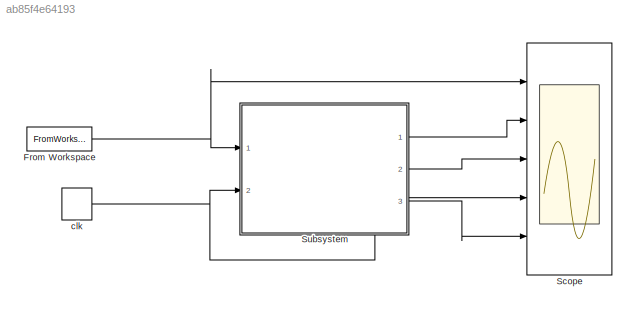
MODEL slx_ab85f4e64193
KIND model
CONFIG AbsTol = auto
CONFIG FixedStep = 1
CONFIG MaxStep = auto
CONFIG MinStep = auto
CONFIG RelTol = 1e-3
CONFIG SampleTimeConstraint = Unconstrained
CONFIG Solver = FixedStepDiscrete
CONFIG SolverMode = Auto
CONFIG SolverName = FixedStepDiscrete
CONFIG StartTime = 0.0
CONFIG StopTime = 300
BLOCK [FromWorkspace] From Workspace
  SampleTime = 0
  VariableName = array
  ZeroCross = on
BLOCK [Scope] Scope
  DataFormat = StructureWithTime
  Floating = off
  MaxDataPoints = 5000000
  NumInputPorts = 5
  Ports = [5]
  SampleTime = 0
  YMax = 5~5~5~5~5
  YMin = -5~-5~-5~-5~-5
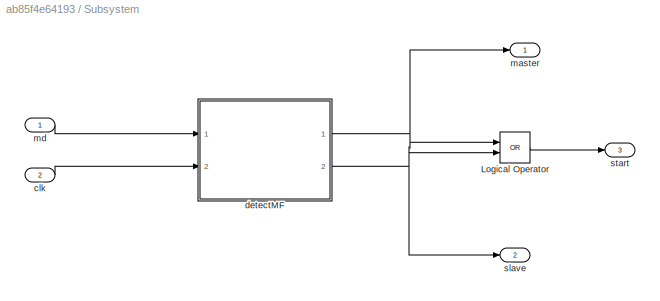
BLOCK [SubSystem] Subsystem
  Ports = [2, 3]
  RequestExecContextInheritance = off
BLOCK [Logic] Subsystem/Logical Operator
  AllPortsSameDT = off
  Operator = OR
  OutDataTypeStr = boolean
  Ports = [2, 1]
BLOCK [Inport] Subsystem/clk
  IconDisplay = Port number
  Port = 2
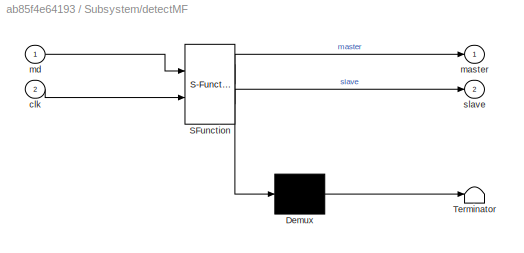
BLOCK [SubSystem] Subsystem/detectMF
  ErrorFcn = Stateflow.Translate.translate
  PermitHierarchicalResolution = ExplicitOnly
  Ports = [2, 2]
  RequestExecContextInheritance = off
  SFBlockType = Chart
  TreatAsAtomicUnit = on
BLOCK [Demux] Subsystem/detectMF/ Demux 
  Outputs = 1
  Ports = [1, 1]
BLOCK [S-Function] Subsystem/detectMF/ SFunction 
  EnableBusSupport = on
  FunctionName = sf_sfun
  PortCounts = [2 3]
  Ports = [2, 3]
  Tag = Stateflow S-Function detectFrame_after 3
BLOCK [Terminator] Subsystem/detectMF/ Terminator 
BLOCK [Inport] Subsystem/detectMF/clk
  IconDisplay = Port number
  Port = 2
BLOCK [Outport] Subsystem/detectMF/master
  IconDisplay = Port number
BLOCK [Inport] Subsystem/detectMF/md
  IconDisplay = Port number
BLOCK [Outport] Subsystem/detectMF/slave
  IconDisplay = Port number
  Port = 2
BLOCK [Outport] Subsystem/master
  IconDisplay = Port number
BLOCK [Inport] Subsystem/md 
  IconDisplay = Port number
BLOCK [Outport] Subsystem/slave
  IconDisplay = Port number
  Port = 2
BLOCK [Outport] Subsystem/start
  IconDisplay = Port number
  Port = 3
BLOCK [DiscretePulseGenerator] clk
  Amplitude = true
  Ports = [0, 1]
  PulseType = Time based
  PulseWidth = 50
NET From Workspace:1 -> Scope:1, Subsystem:1
LINE Subsystem/Logical Operator:1 -> Subsystem/start:1
LINE Subsystem/clk:1 -> Subsystem/detectMF:2
NET Subsystem/detectMF:1 -> Subsystem/Logical Operator:1, Subsystem/master:1
NET Subsystem/detectMF:2 -> Subsystem/Logical Operator:2, Subsystem/slave:1
LINE Subsystem/md :1 -> Subsystem/detectMF:1
LINE Subsystem:1 -> Scope:2
LINE Subsystem:2 -> Scope:3
LINE Subsystem:3 -> Scope:5
NET clk:1 -> Scope:4, Subsystem:2
note: NET lines group one-source signal fan-out (src -> all destinations, sorted); 1:1 wires keep LINE
CHART Subsystem/detectMF states=7 transitions=2
  STATE_LABEL 'r = BufferFIFO(A, c)'
  STATE_LABEL 'SCRIPT:\nfunction r = BufferFIFO(A, c)\n%% bufferFIFO %%%%%%%%%%%%%%%%%%%%%%%%%%%%%\nA(2:144) = A(1:143);\nA(1) = c;\nr = A;\n %% bufferFIFO %%%%%%%%%%%%%%%%%%%%%%%%%%%%%\n'
  STATE_LABEL 'detectMainFrame'
  STATE_LABEL 'FIFO\ndu:\nmaster = detectMainFrame(samples);\n'
  STATE_LABEL '[clk==1]\n{\nsamples  = BufferFIFO(samples, md);\n}'
  STATE_LABEL 'r = detectMainFrame(A)'
  STATE_LABEL 'SCRIPT:\nfunction r = detectMainFrame(A)\n%% detectMainFrame %%%%%%%%%%%%%%%%%%%%%%%%%%%%%%%%%%%%%%%%%%%%%%%%%%%%%%%%%%%%%%%%%%%%%%%%%%%%%%%%%%%%%%%%%%%%%%%%%\nif (A(137)==1 && A(138)==1 && A(139)==1&& A(140)==1&& A(141)==1&& A(142)==1&& A(143)==1&& A(144)==1) || ...\n    (A(137)==1 && A(138)==0 && A(139)==1&& A(140)==1&& A(141)==1&& A(142)==1&& A(143)==1&& A(144)==1) || ...\n    (A(137)==1 && A(138)==...<+3608ch>'
  STATE_LABEL 'FIFO\ndu:\nmaster = detectMainFrame(samples);\n'
  STATE_LABEL '[clk==1]\n{\nsamples  = BufferFIFO(samples, md);\n}'
  STATE_LABEL 'r = detectMainFrame(A)'
  STATE_LABEL 'SCRIPT:\nfunction r = detectMainFrame(A)\n%% detectMainFrame %%%%%%%%%%%%%%%%%%%%%%%%%%%%%%%%%%%%%%%%%%%%%%%%%%%%%%%%%%%%%%%%%%%%%%%%%%%%%%%%%%%%%%%%%%%%%%%%%\nif (A(137)==1 && A(138)==1 && A(139)==1&& A(140)==1&& A(141)==1&& A(142)==1&& A(143)==1&& A(144)==1) || ...\n    (A(137)==1 && A(138)==0 && A(139)==1&& A(140)==1&& A(141)==1&& A(142)==1&& A(143)==1&& A(144)==1) || ...\n    (A(137)==1 && A(138)==...<+3608ch>'
  STATE_LABEL 'detectSlaveFrame'
  STATE_LABEL 'FIFO\ndu:\nslave = detectSlaveFrame(samples);\n'
  STATE_LABEL '[clk==1]\n{\nsamples  = BufferFIFO(samples, md);\n}'
  STATE_LABEL 'r = detectSlaveFrame(A)'
  STATE_LABEL 'SCRIPT:\nfunction r = detectSlaveFrame(A)\n%% detectSlaveFrame %%%%%%%%%%%%%%%%%%%%%%%%%%%%%%%%%%%%%%%%%%%%%%%%%%%%%%%%%%%%%%%%%%%%%%%%%%%%%%%%%%%%\nif (A(137)==1 && A(138)==1 && A(139)==1&& A(140)==1&& A(141)==1&& A(142)==1&& A(143)==1&& A(144)==1) || ...\n    (A(137)==1 && A(138)==0 && A(139)==1&& A(140)==1&& A(141)==1&& A(142)==1&& A(143)==1&& A(144)==1) || ...\n    (A(137)==1 && A(138)==1 && A(139)...<+3608ch>'
  STATE_LABEL 'FIFO\ndu:\nslave = detectSlaveFrame(samples);\n'
  STATE_LABEL '[clk==1]\n{\nsamples  = BufferFIFO(samples, md);\n}'
  STATE_LABEL 'r = detectSlaveFrame(A)'
  STATE_LABEL 'SCRIPT:\nfunction r = detectSlaveFrame(A)\n%% detectSlaveFrame %%%%%%%%%%%%%%%%%%%%%%%%%%%%%%%%%%%%%%%%%%%%%%%%%%%%%%%%%%%%%%%%%%%%%%%%%%%%%%%%%%%%\nif (A(137)==1 && A(138)==1 && A(139)==1&& A(140)==1&& A(141)==1&& A(142)==1&& A(143)==1&& A(144)==1) || ...\n    (A(137)==1 && A(138)==0 && A(139)==1&& A(140)==1&& A(141)==1&& A(142)==1&& A(143)==1&& A(144)==1) || ...\n    (A(137)==1 && A(138)==1 && A(139)...<+3608ch>'
